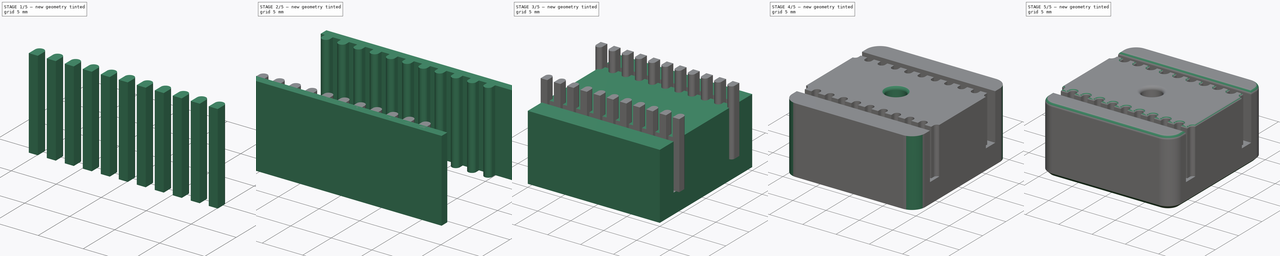
[diagram: build sequence overview — one tinted view per stage of 5, left to right]
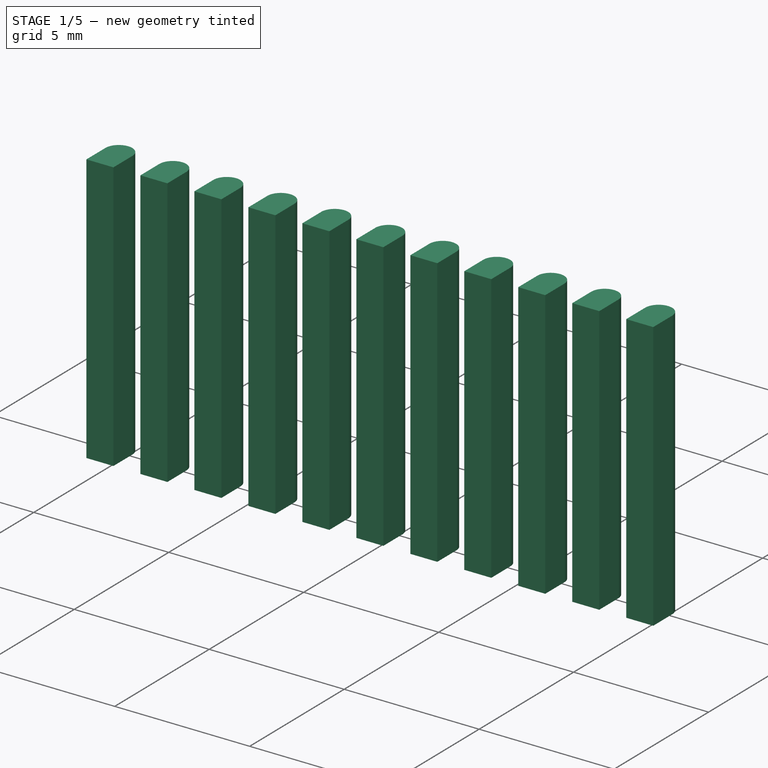
[diagram: stage 1 of 5 — iso view after this stage's code; geometry added in this stage tinted green]
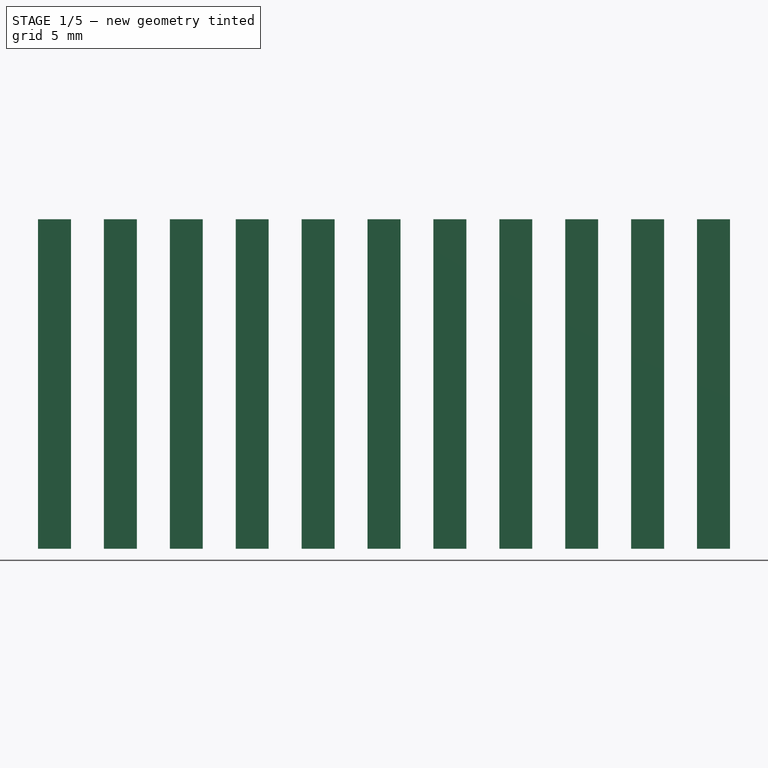
[diagram: stage 1 of 5 — front view after this stage's code; geometry added in this stage tinted green]
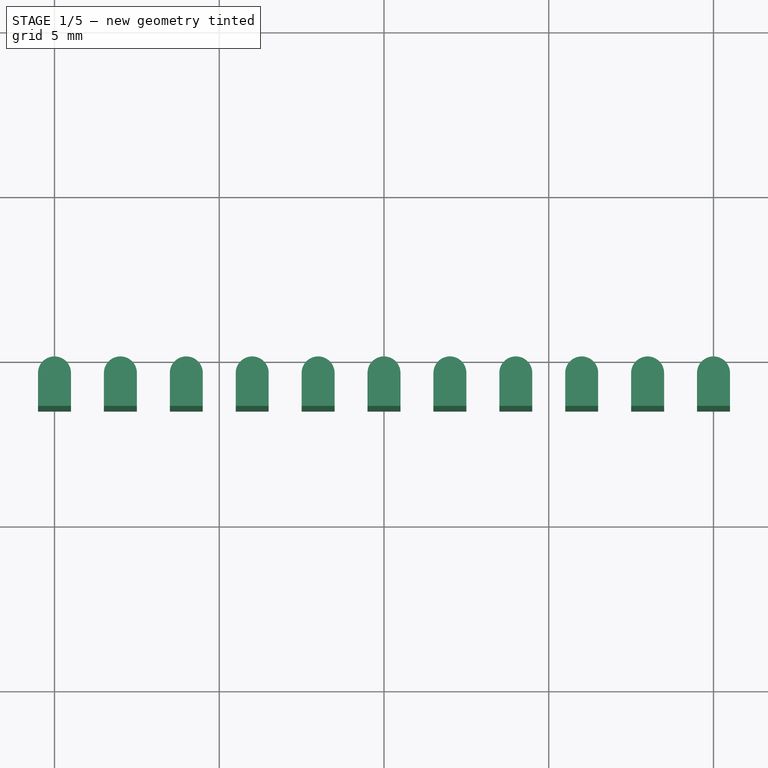
[diagram: stage 1 of 5 — top view after this stage's code; geometry added in this stage tinted green]
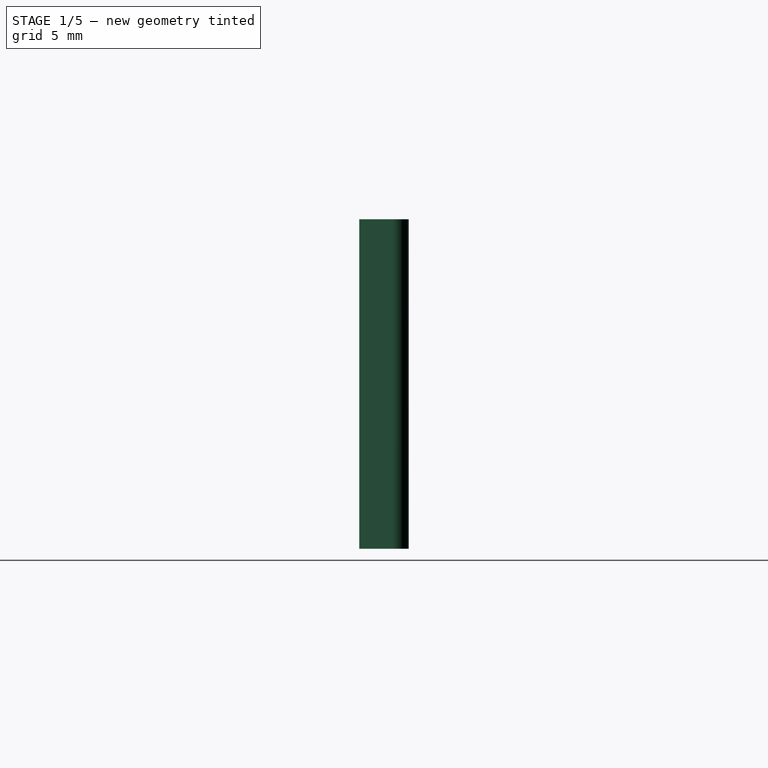
[diagram: stage 1 of 5 — right view after this stage's code; geometry added in this stage tinted green]
FCSTD DOCUMENT  (FreeCAD 0.16R6712 (Git))
Label: bloqueo_correa
License: All rights reserved
LicenseURL: http://en.wikipedia.org/wiki/All_rights_reserved
objects: Part::Box×4, PartDesign::Fillet×4, Part::MultiFuse×3, Part::Cut×2, PartDesign::Chamfer×2, Part::Cylinder×1, Part::FeaturePython×1, Part::Mirroring×1, Sketcher::SketchObject×1, PartDesign::Pocket×1
note: 21 computed .brp shape members not serialized (recipe doc carries the construction recipe); baked Part::Feature solids carry a one-line shape summary decoded from their .brp

FEATURE [Part::Cylinder] Cylinder  label="Cilindro"
  Angle = 360
  Height = 10
  Placement = pos=(-10,-5.5,3) rot=(0,0,1;0rad)
  Radius = 0.5
FEATURE [Part::Box] Box003  label="Cubo003"
  Height = 10
  Length = 1
  Placement = pos=(-10.5,-6.5,3) rot=(0,0,1;0rad)
  Width = 1
FEATURE [Part::MultiFuse] Fusion001  label="diente"
  Shapes = -> [Cylinder,Box003]
FEATURE [Part::FeaturePython] Array  # Draft array (typed FeaturePython)
  Angle = 360
  ArrayType = 0
  Axis = (0,0,1)
  Base = -> Fusion001
  Center = (0,0,0)
  Fuse = false
  IntervalAxis = (0,0,0)
  IntervalX = (2,0,0)
  IntervalY = (0,1,0)
  IntervalZ = (0,0,0)
  NumberPolar = 1
  NumberX = 11
  NumberY = 1
  NumberZ = 1
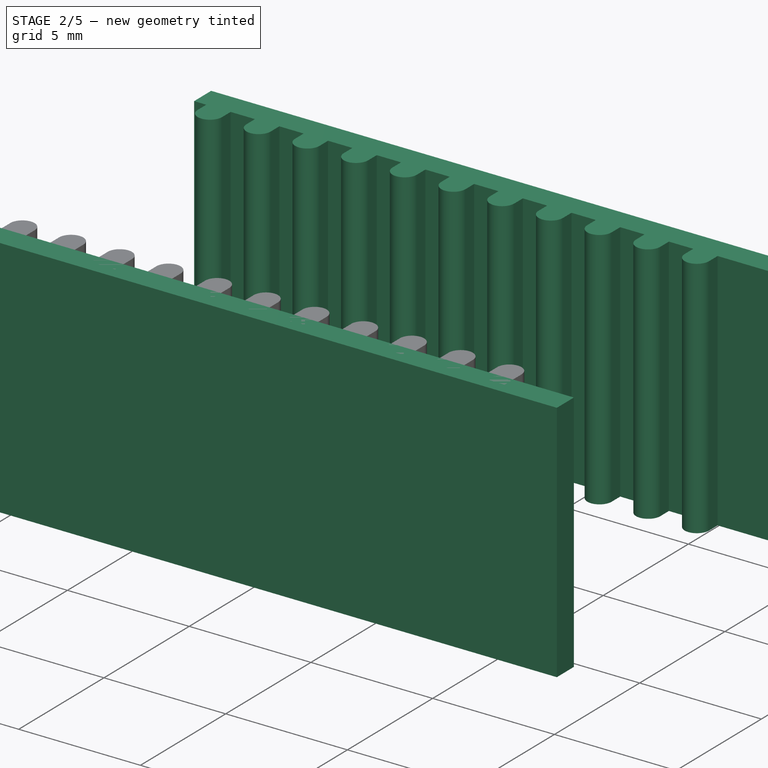
[diagram: stage 2 of 5 — iso view after this stage's code; geometry added in this stage tinted green]
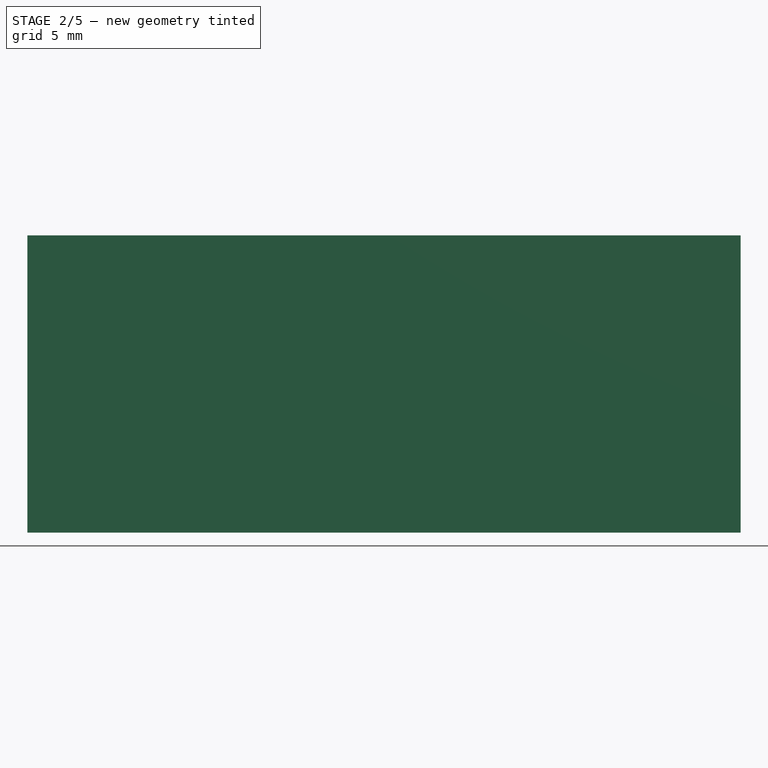
[diagram: stage 2 of 5 — front view after this stage's code; geometry added in this stage tinted green]
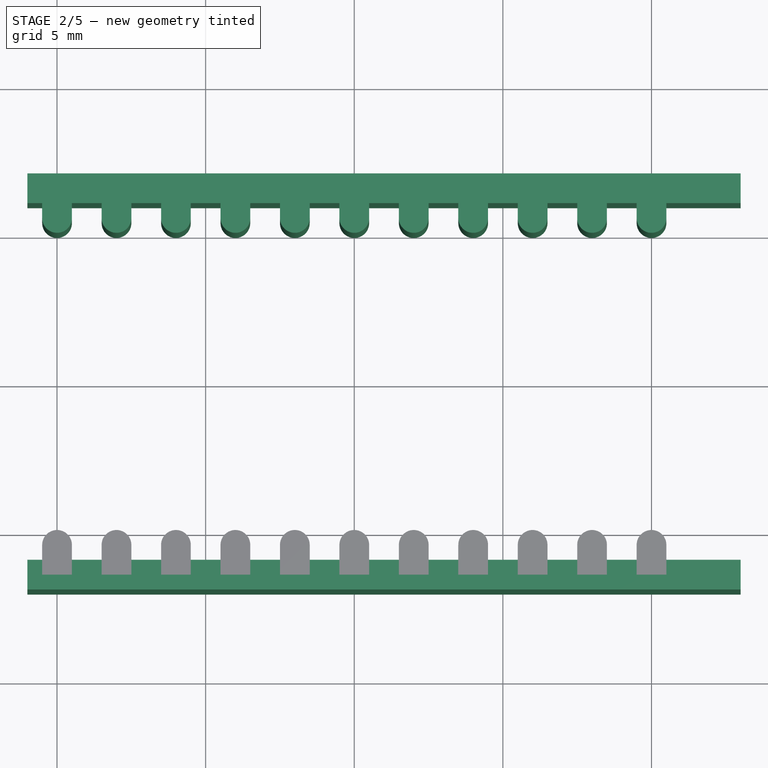
[diagram: stage 2 of 5 — top view after this stage's code; geometry added in this stage tinted green]
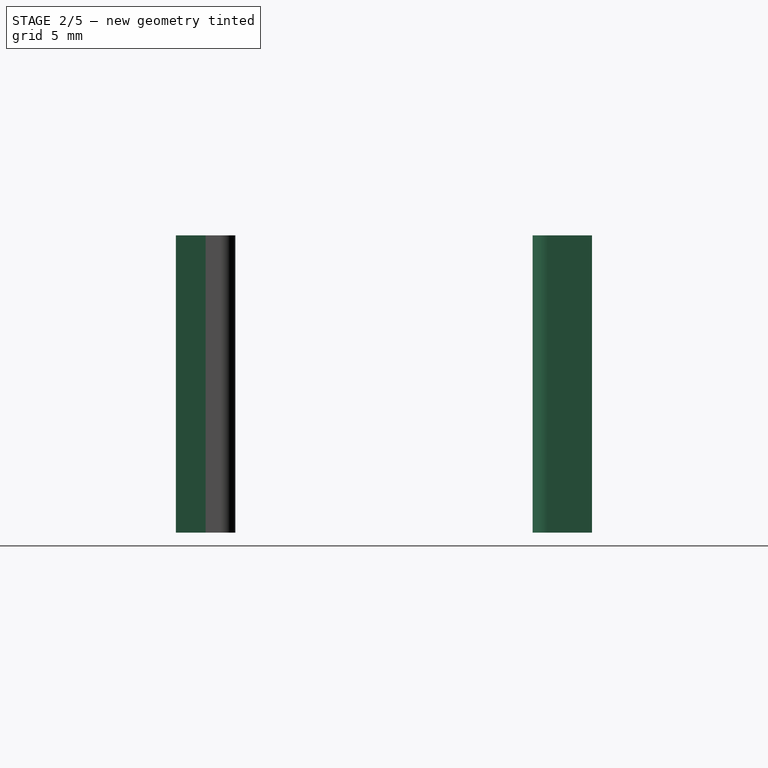
[diagram: stage 2 of 5 — right view after this stage's code; geometry added in this stage tinted green]
FEATURE [Part::Box] Box001  label="Cubo001"
  Height = 10
  Length = 24
  Placement = pos=(-11,-7,3) rot=(0,0,1;0rad)
  Width = 1
FEATURE [Part::Box] Box002  label="Cubo002"
  Height = 10
  Length = 24
  Placement = pos=(-11,6,3) rot=(0,0,1;0rad)
  Width = 1
FEATURE [Part::Mirroring] Part__Mirroring  label="Array (Mirror #1)"
  Base = (0,0,0)
  Normal = (0,1,0)
  Source = -> Array
FEATURE [Part::MultiFuse] Fusion002
  Shapes = -> [Array,Part__Mirroring]
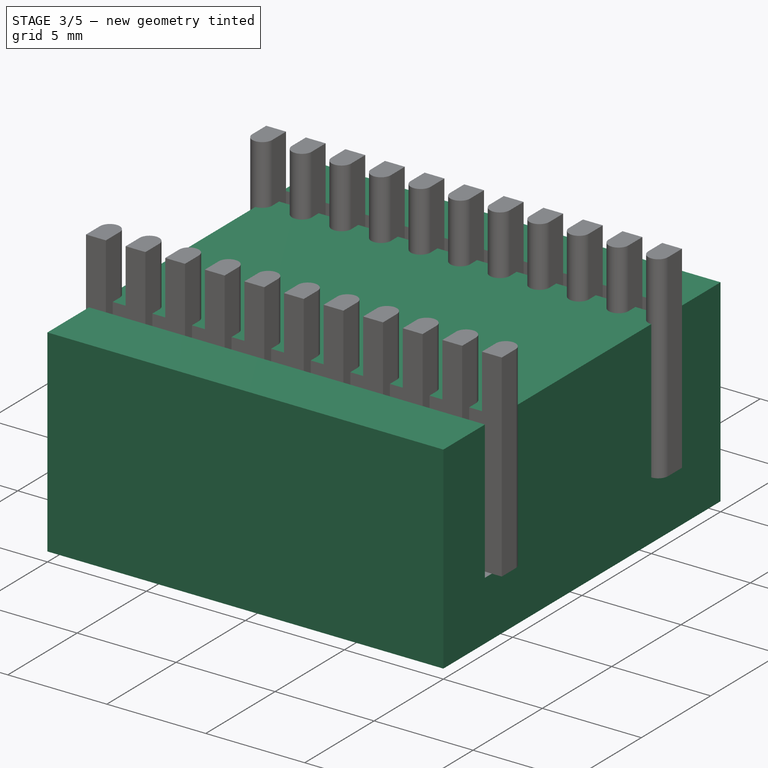
[diagram: stage 3 of 5 — iso view after this stage's code; geometry added in this stage tinted green]
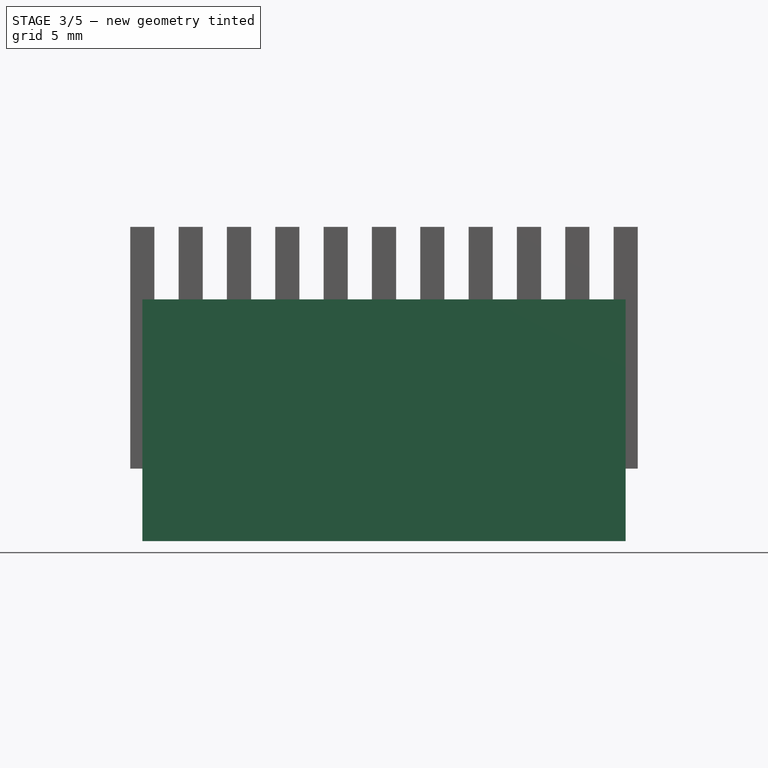
[diagram: stage 3 of 5 — front view after this stage's code; geometry added in this stage tinted green]
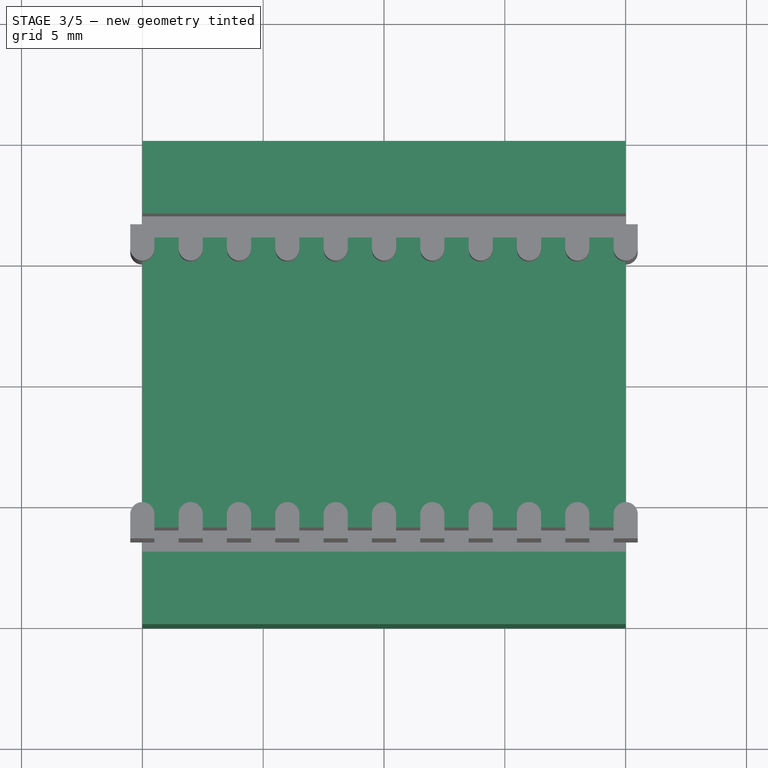
[diagram: stage 3 of 5 — top view after this stage's code; geometry added in this stage tinted green]
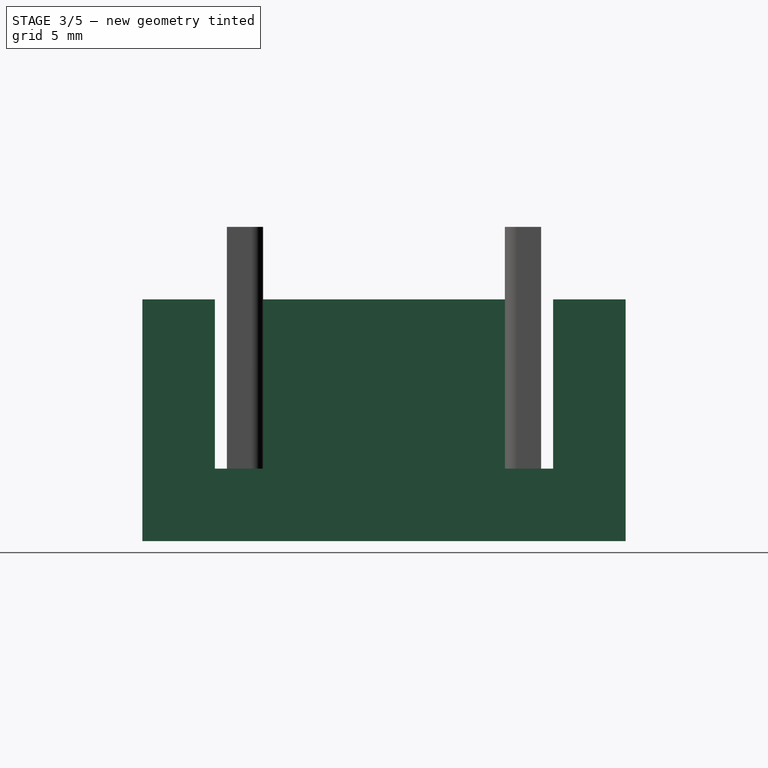
[diagram: stage 3 of 5 — right view after this stage's code; geometry added in this stage tinted green]
FEATURE [Part::Box] Box  label="Cubo"
  Height = 10
  Length = 20
  Placement = pos=(-10,-10,0) rot=(0,0,1;0rad)
  Width = 20
FEATURE [Part::MultiFuse] Fusion
  Shapes = -> [Box002,Box001]
FEATURE [Part::Cut] Cut
  Base = -> Box
  Tool = -> Fusion
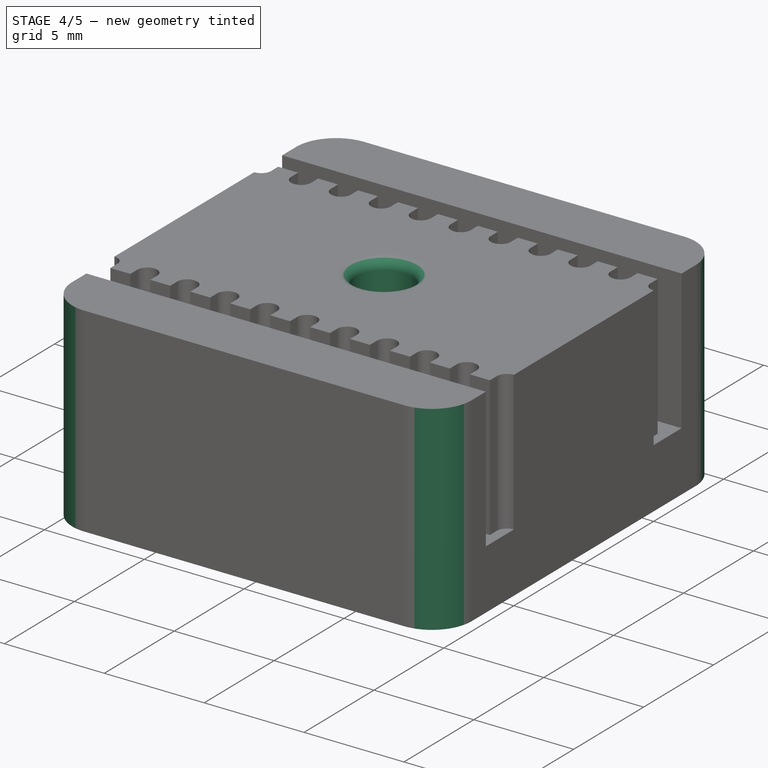
[diagram: stage 4 of 5 — iso view after this stage's code; geometry added in this stage tinted green]
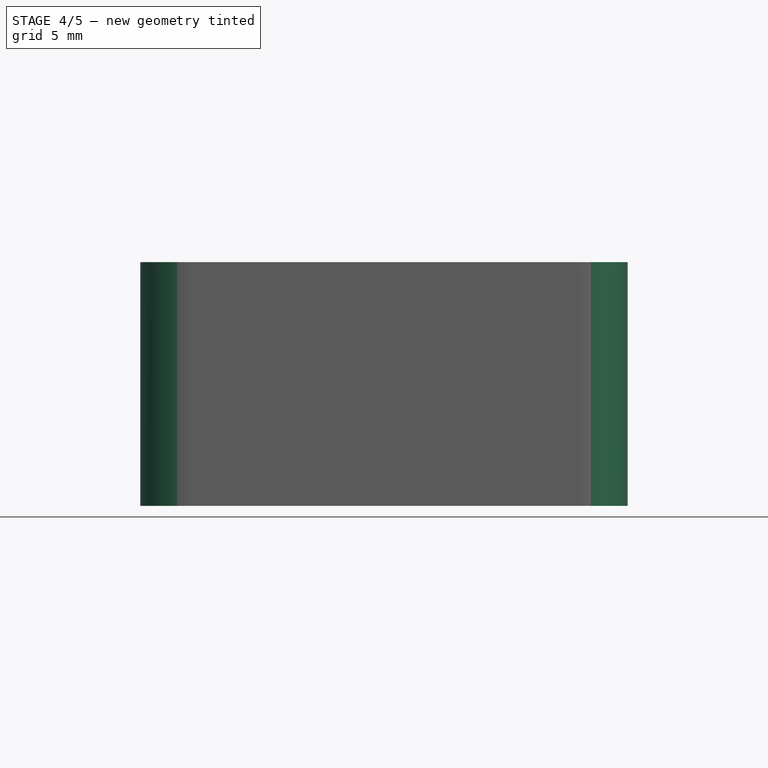
[diagram: stage 4 of 5 — front view after this stage's code; geometry added in this stage tinted green]
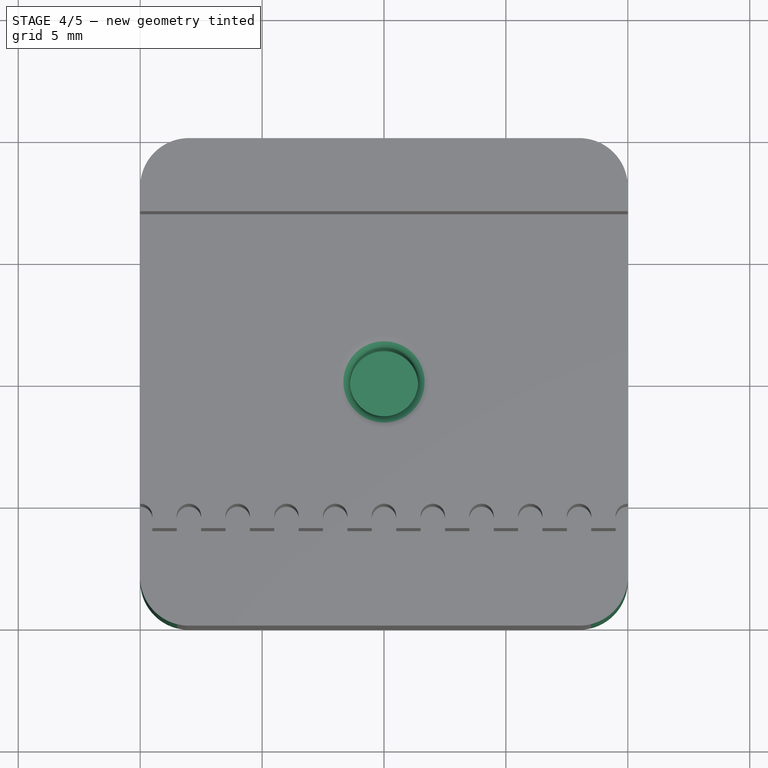
[diagram: stage 4 of 5 — top view after this stage's code; geometry added in this stage tinted green]
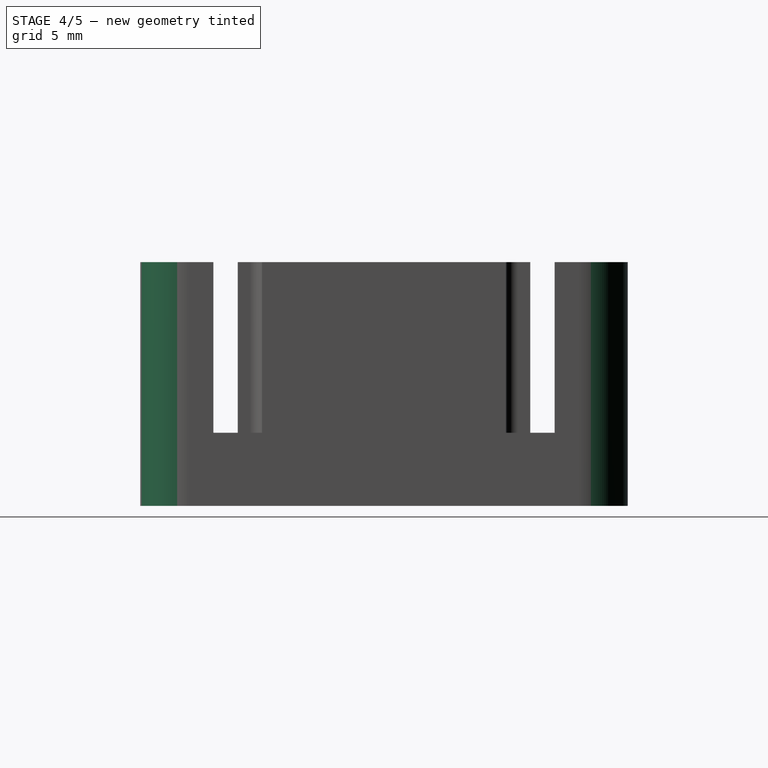
[diagram: stage 4 of 5 — right view after this stage's code; geometry added in this stage tinted green]
FEATURE [Part::Cut] Cut001
  Base = -> Cut
  Tool = -> Fusion002
FEATURE [Sketcher::SketchObject] Sketch
  Placement = pos=(0,0,10) rot=(0,0,1;0rad)
  Support = -> Cut001 [Face5]
  sketch-geometry (1):
    g0: Circle CenterX=0 CenterY=0 CenterZ=0 NormalX=0 NormalY=0 NormalZ=1 Radius=1.4
  constraints (2):
    c: Coincident(g0,g-1)
    c: Radius(g0) = 1.4
FEATURE [PartDesign::Pocket] Pocket
  Length = 8
  Sketch = -> Sketch
  Type = 0
FEATURE [PartDesign::Fillet] Fillet
  Base = -> Pocket [Edge144]
  Radius = 0.5
FEATURE [PartDesign::Fillet] Fillet001
  Base = -> Fillet [Edge269,Edge98,Edge271,Edge96]
  Radius = 2
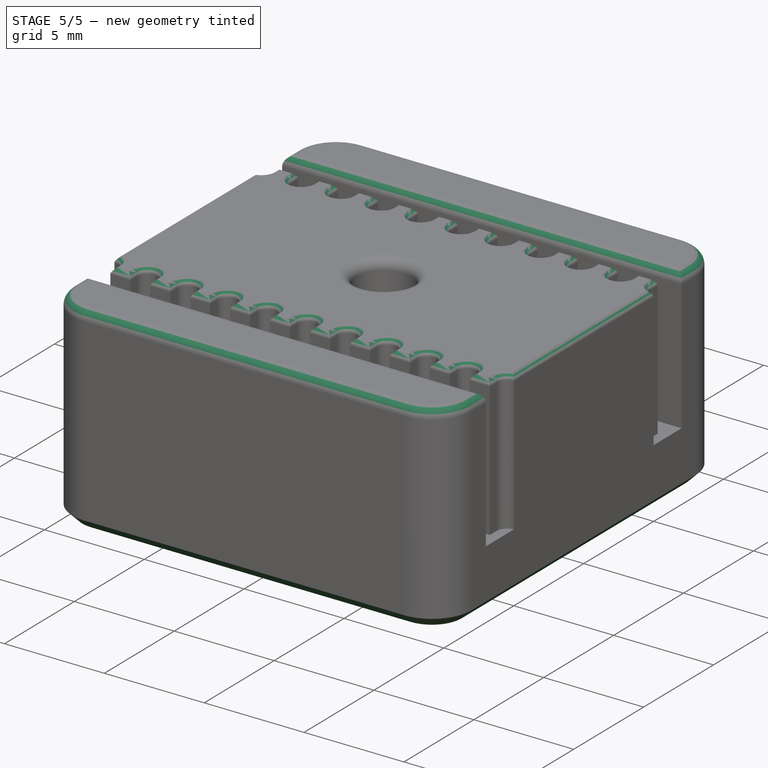
[diagram: stage 5 of 5 — iso view after this stage's code; geometry added in this stage tinted green]
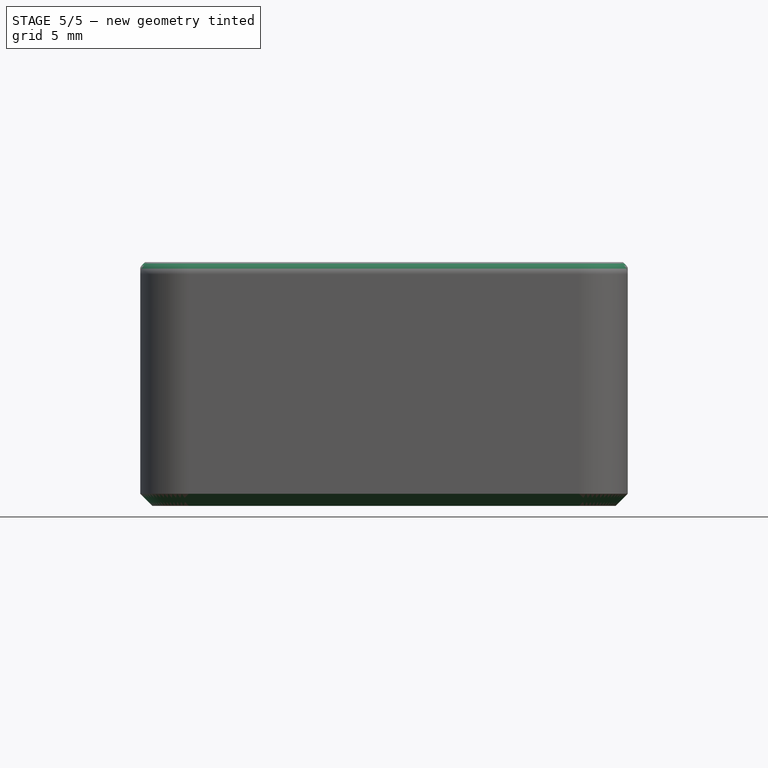
[diagram: stage 5 of 5 — front view after this stage's code; geometry added in this stage tinted green]
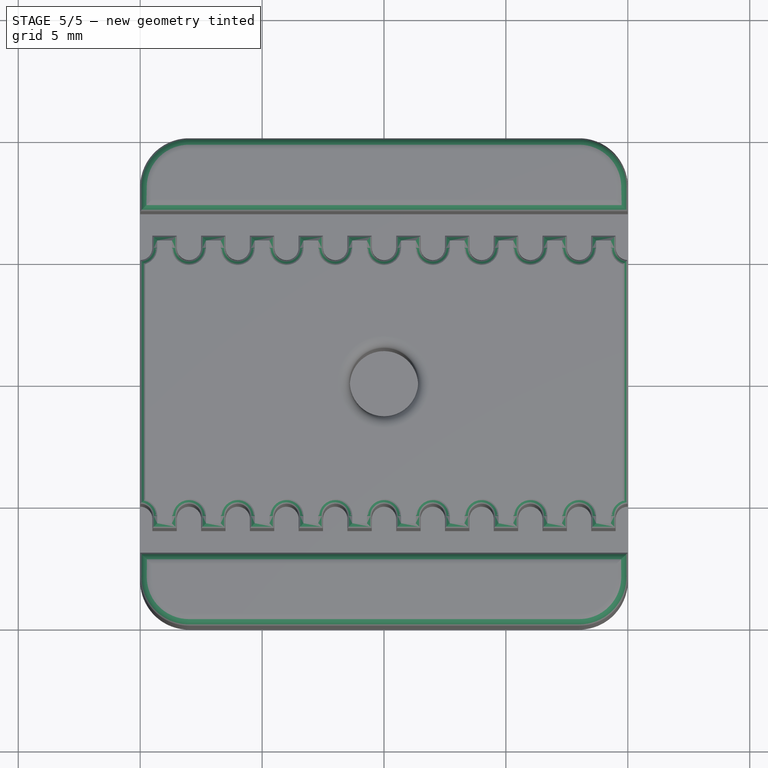
[diagram: stage 5 of 5 — top view after this stage's code; geometry added in this stage tinted green]
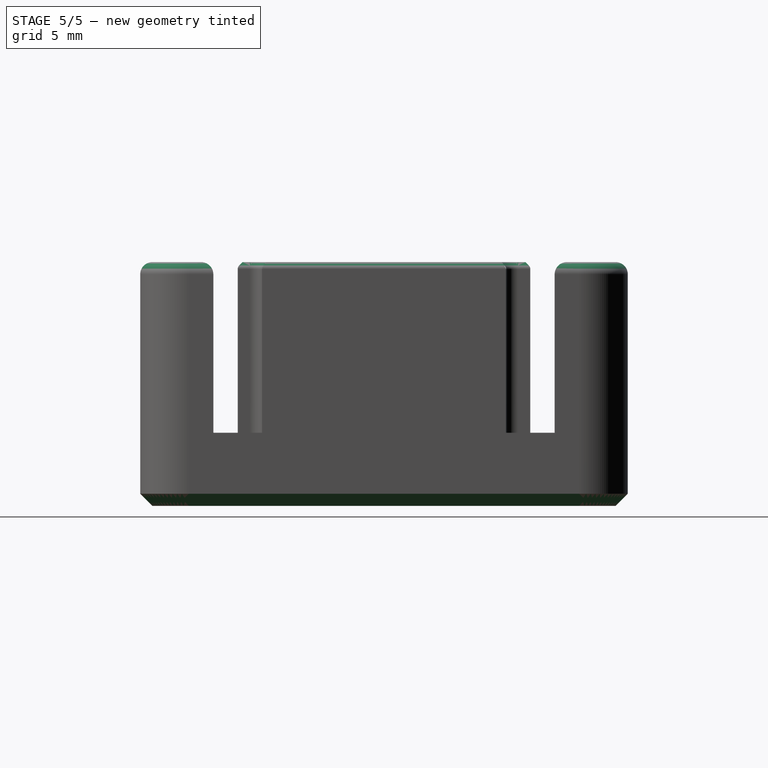
[diagram: stage 5 of 5 — right view after this stage's code; geometry added in this stage tinted green]
FEATURE [PartDesign::Chamfer] Chamfer
  Base = -> Fillet001 [Edge4,Edge18,Edge22,Edge23,Edge24,Edge25,Edge26,Edge27]
  Size = 0.5
FEATURE [PartDesign::Fillet] Fillet002
  Base = -> Chamfer [Edge3,Edge14,Edge19,Edge20,Edge21,Edge22,Edge6,Edge24,Edge28,Edge29,Edge30,Edge31]
  Radius = 0.5
FEATURE [PartDesign::Chamfer] Chamfer001
  Base = -> Fillet002 [Edge10,Edge73,Edge79,Edge80,Edge81,Edge82,Edge83,Edge84,Edge85,Edge86,Edge87,Edge88,Edge89,Edge90,Edge91,Edge92,Edge93,Edge94,Edge95,Edge96,Edge97,Edge98,Edge99,Edge100,Edge101,Edge102,Edge103,Edge104,Edge105,Edge106,Edge107,Edge108,Edge109,Edge110,Edge111,Edge112,Edge113,Edge114,Edge115,Edge116,+44 more]
  Size = 0.2
FEATURE [PartDesign::Fillet] Fillet003
  Base = -> Chamfer001 [Edge227,Edge235,Edge232,Edge240,Edge243,Edge248,Edge251,Edge256,Edge259,Edge264,Edge267,Edge272,Edge275,Edge280,Edge283,Edge288,Edge291,Edge296,Edge214,Edge224,Edge216,Edge378,Edge375,Edge370,Edge362,Edge367,Edge359,Edge354,Edge351,Edge346,Edge343,Edge338,Edge335,Edge330,Edge327,Edge322,Edge319,Edge314,Edge306,Edge311,+4 more]
  Radius = 0.2
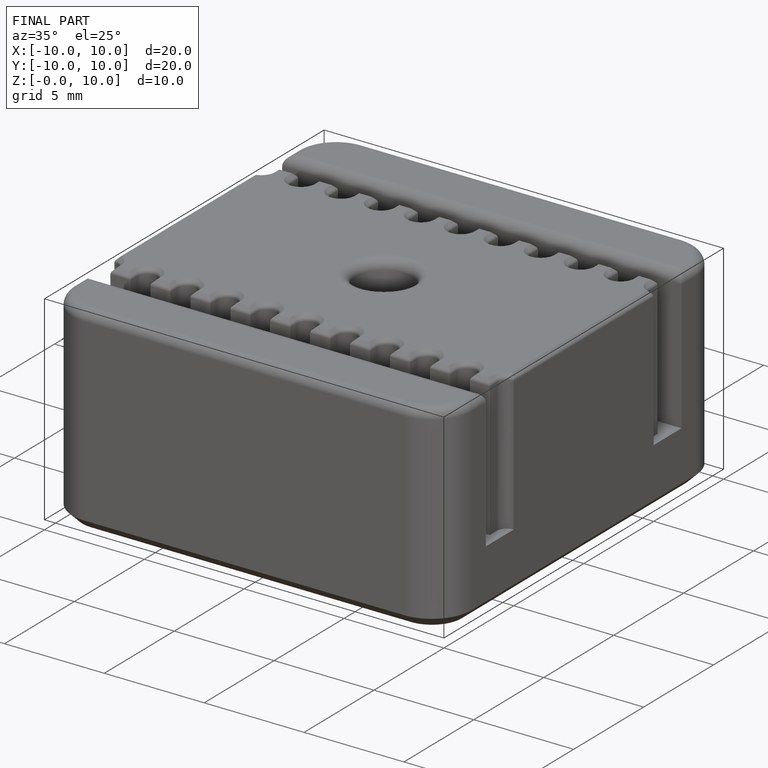
[diagram: finished part — iso view with bounding-box wireframe]
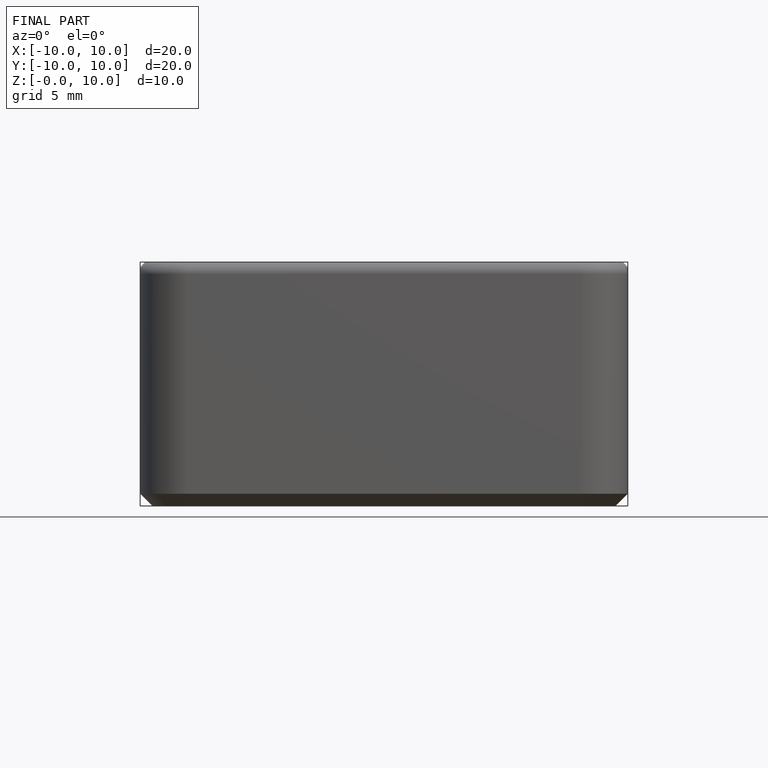
[diagram: finished part — front view with bounding-box wireframe]
